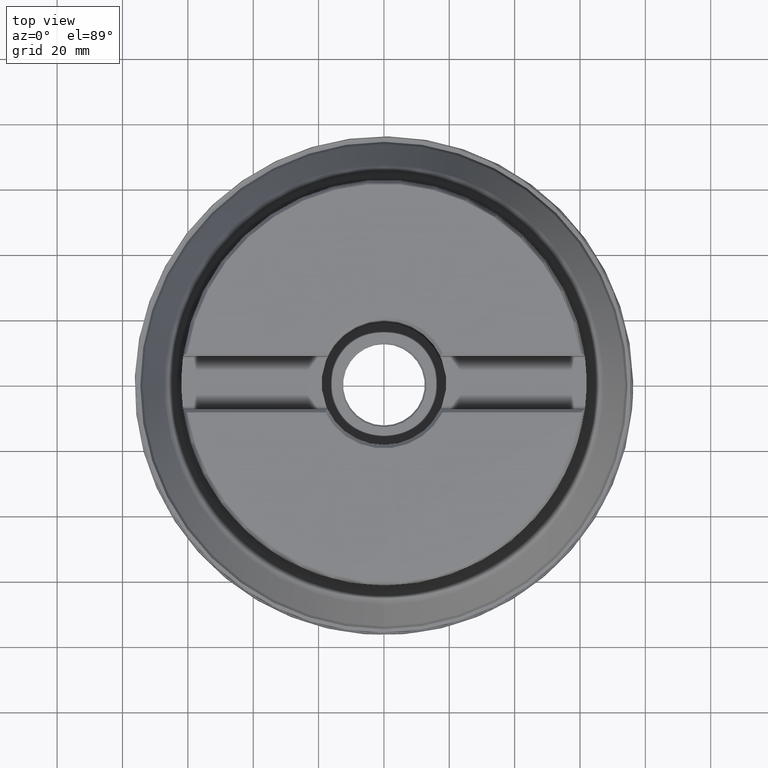
[diagram: clean part render]
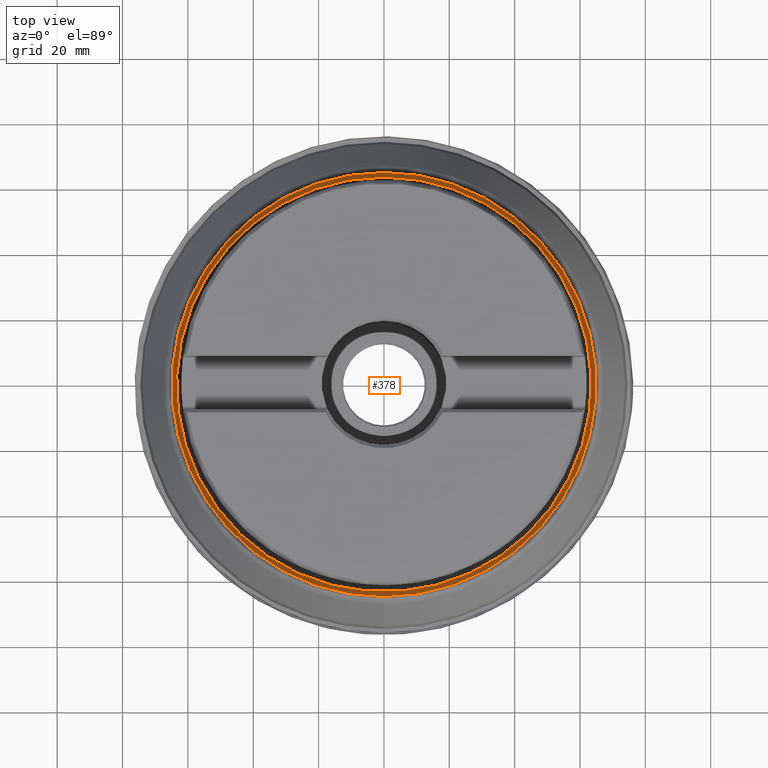
[diagram: same view with one face highlighted and labeled with its STEP entity id]
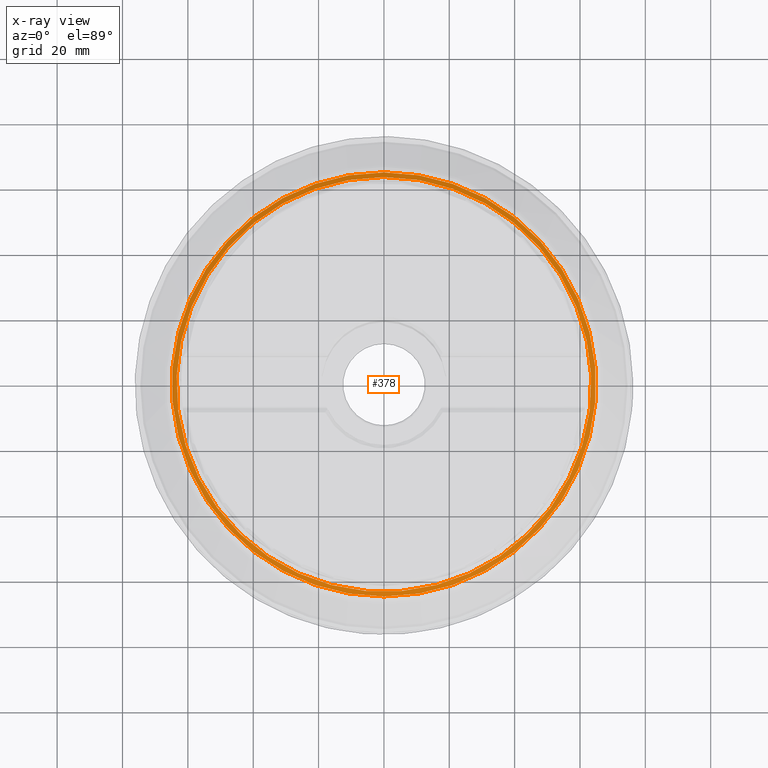
[diagram: x-ray of the same camera — body ghosted, the highlighted face saturated]
A machine part, top view. The second image highlights one B-rep face of the part: STEP entity #378.
The next image is the same camera in x-ray: the body ghosted, the highlighted face saturated — about 0% of this face is hidden behind the body in this view.
In plain terms, the highlighted conical surface has half-angle 66 deg.
Its self-contained STEP definition (entity closure, byte-faithful):
#160=CONICAL_SURFACE('',#1240,66.3904016023129,65.9999999999999);
#273=FACE_BOUND('',#503,.T.);
#274=FACE_BOUND('',#504,.T.);
#378=ADVANCED_FACE('',(#273,#274),#160,.T.);
#503=EDGE_LOOP('',(#662));
#504=EDGE_LOOP('',(#663));
#662=ORIENTED_EDGE('',*,*,#996,.T.);
#663=ORIENTED_EDGE('',*,*,#997,.T.);
#894=VERTEX_POINT('',#2083);
#895=VERTEX_POINT('',#2085);
#996=EDGE_CURVE('',#894,#894,#1096,.T.);
#997=EDGE_CURVE('',#895,#895,#1097,.T.);
#1096=CIRCLE('',#1238,63.466316784621);
#1097=CIRCLE('',#1239,64.9062570393519);
#1238=AXIS2_PLACEMENT_3D('',#2082,#1406,#1407);
#1239=AXIS2_PLACEMENT_3D('',#2084,#1408,#1409);
#1240=AXIS2_PLACEMENT_3D('',#2086,#1410,#1411);
#1406=DIRECTION('',(0.,-1.17145536458252E-15,-1.));
#1407=DIRECTION('',(0.,1.,-1.14798509953363E-15));
#1408=DIRECTION('',(0.,1.17145536458252E-15,1.));
#1409=DIRECTION('',(0.,-1.,1.17597033667652E-15));
#1410=DIRECTION('',(0.,-1.17145536458252E-15,-1.));
#1411=DIRECTION('',(0.,1.,-1.13276321800327E-15));
#2082=CARTESIAN_POINT('',(0.,3.115165441446E-14,26.5922674958782));
#2083=CARTESIAN_POINT('',(0.,63.466316784621,26.5922674958781));
#2084=CARTESIAN_POINT('',(0.,3.04006312096392E-14,25.9511647893415));
#2085=CARTESIAN_POINT('',(0.,-64.9062570393519,25.9511647893416));
#2086=CARTESIAN_POINT('',(0.,2.96265525612855E-14,25.2903810567666));